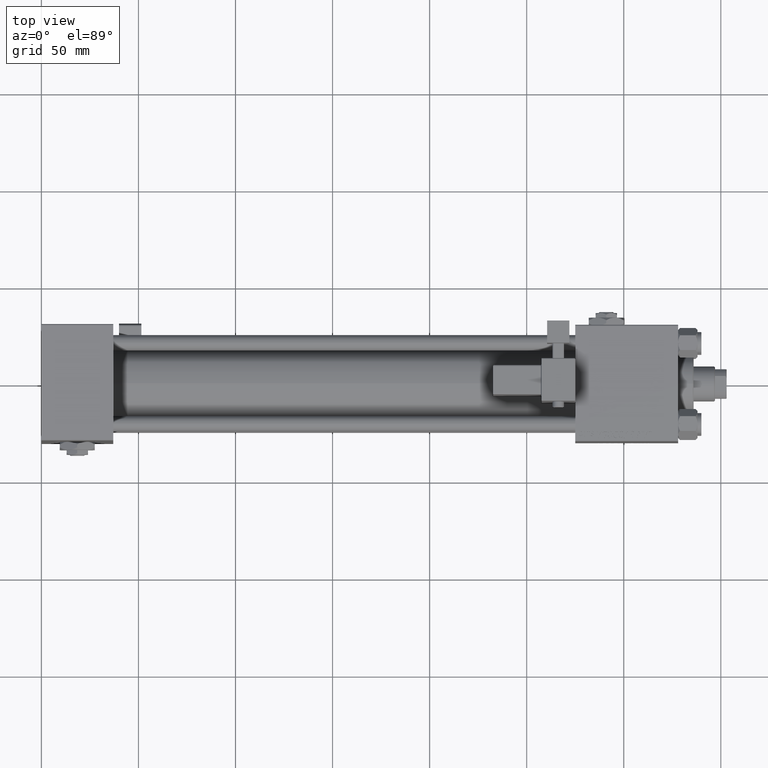
[diagram: clean part render]
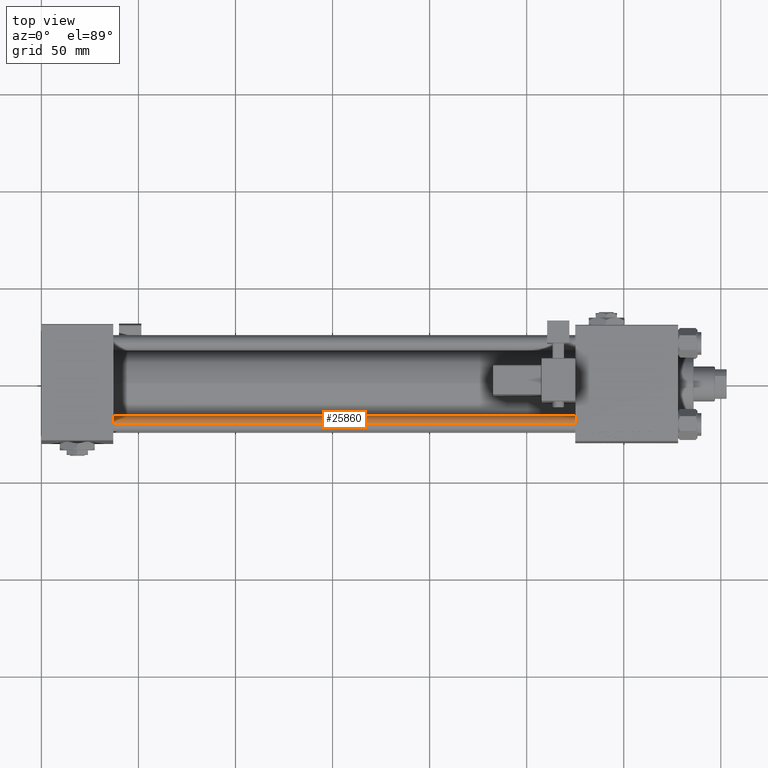
[diagram: same view with one face highlighted and labeled with its STEP entity id]
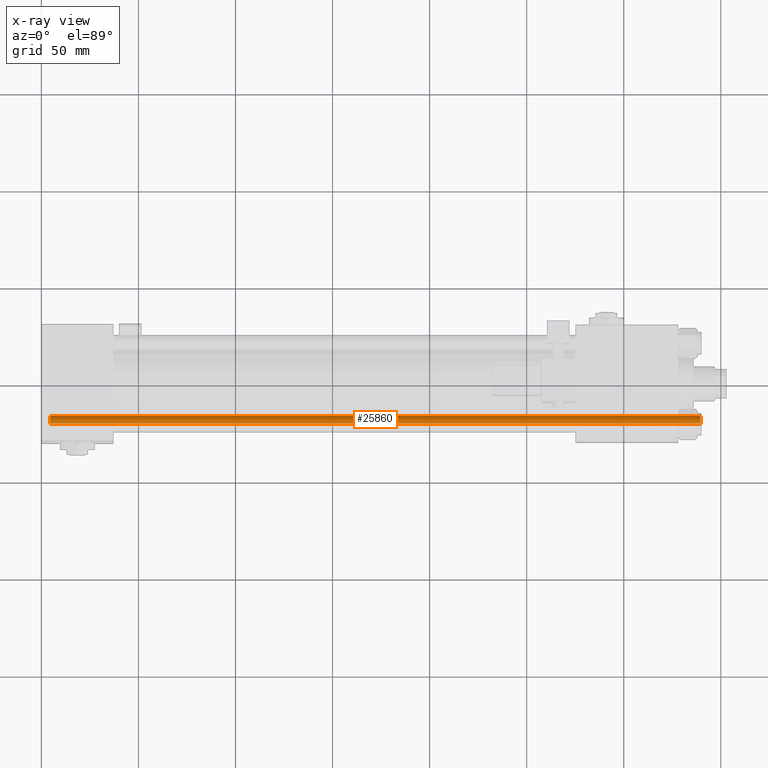
[diagram: x-ray of the same camera — body ghosted, the highlighted face saturated]
A machine part, top view. The second image highlights one B-rep face of the part: STEP entity #25860.
The next image is the same camera in x-ray: the body ghosted, the highlighted face saturated — about 0% of this face is hidden behind the body in this view.
In plain terms, the highlighted cylindrical surface (edge-blend (fillet) strip) has radius 4 mm, axis along (-1, 0, -0).
Its self-contained STEP definition (entity closure, byte-faithful):
#2144 = AXIS2_PLACEMENT_3D ( 'NONE', #6656, #19780, #27973 ) ;
#2477 = DIRECTION ( 'NONE',  ( -1.000000000000000000, 0.000000000000000000, 0.000000000000000000 ) ) ;
#2494 = ORIENTED_EDGE ( 'NONE', *, *, #33054, .F. ) ;
#3423 = VECTOR ( 'NONE', #22147, 1000.000000000000000 ) ;
#6566 = CARTESIAN_POINT ( 'NONE',  ( 0.000000000000000000, 0.000000000000000000, 0.5000000000003335110 ) ) ;
#6656 = CARTESIAN_POINT ( 'NONE',  ( 0.000000000000000000, 0.000000000000000000, 335.5000000000001705 ) ) ;
#9845 = DIRECTION ( 'NONE',  ( 1.000000000000000000, 0.000000000000000000, 0.000000000000000000 ) ) ;
#10874 = CARTESIAN_POINT ( 'NONE',  ( 4.000000000000000000, 4.898587196589411843E-16, 336.0000000000000000 ) ) ;
#12785 = VERTEX_POINT ( 'NONE', #24176 ) ;
#14211 = DIRECTION ( 'NONE',  ( -0.000000000000000000, -0.000000000000000000, 1.000000000000000000 ) ) ;
#14226 = VECTOR ( 'NONE', #42381, 1000.000000000000000 ) ;
#14501 = FACE_OUTER_BOUND ( 'NONE', #38098, .T. ) ;
#14703 = LINE ( 'NONE', #10874, #14226 ) ;
#16218 = VERTEX_POINT ( 'NONE', #45545 ) ;
#18084 = CIRCLE ( 'NONE', #48593, 4.000000000000000000 ) ;
#19780 = DIRECTION ( 'NONE',  ( 0.000000000000000000, 0.000000000000000000, -1.000000000000000000 ) ) ;
#20598 = ORIENTED_EDGE ( 'NONE', *, *, #46457, .T. ) ;
#20655 = ORIENTED_EDGE ( 'NONE', *, *, #25165, .T. ) ;
#21350 = LINE ( 'NONE', #47245, #3423 ) ;
#22147 = DIRECTION ( 'NONE',  ( -0.000000000000000000, -0.000000000000000000, -1.000000000000000000 ) ) ;
#24176 = CARTESIAN_POINT ( 'NONE',  ( -4.000000000000000000, 0.000000000000000000, 335.5000000000001705 ) ) ;
#24261 = VERTEX_POINT ( 'NONE', #35282 ) ;
#25165 = EDGE_CURVE ( 'NONE', #24261, #16218, #18084, .T. ) ;
#25860 = ADVANCED_FACE ( 'NONE', ( #14501 ), #47525, .T. ) ;
#26795 = CARTESIAN_POINT ( 'NONE',  ( 0.000000000000000000, 0.000000000000000000, 336.0000000000000000 ) ) ;
#27732 = AXIS2_PLACEMENT_3D ( 'NONE', #26795, #31175, #2477 ) ;
#27973 = DIRECTION ( 'NONE',  ( 1.000000000000000000, 0.000000000000000000, 0.000000000000000000 ) ) ;
#28840 = CARTESIAN_POINT ( 'NONE',  ( 4.000000000000000000, 4.898587196589411843E-16, 335.5000000000001705 ) ) ;
#30265 = VERTEX_POINT ( 'NONE', #28840 ) ;
#31175 = DIRECTION ( 'NONE',  ( -0.000000000000000000, -0.000000000000000000, -1.000000000000000000 ) ) ;
#33054 = EDGE_CURVE ( 'NONE', #12785, #16218, #21350, .T. ) ;
#35282 = CARTESIAN_POINT ( 'NONE',  ( 4.000000000000000000, 4.898587196589411843E-16, 0.5000000000003335110 ) ) ;
#38098 = EDGE_LOOP ( 'NONE', ( #44256, #20598, #20655, #2494 ) ) ;
#42381 = DIRECTION ( 'NONE',  ( -0.000000000000000000, -0.000000000000000000, -1.000000000000000000 ) ) ;
#44256 = ORIENTED_EDGE ( 'NONE', *, *, #49123, .T. ) ;
#45545 = CARTESIAN_POINT ( 'NONE',  ( -4.000000000000000000, 0.000000000000000000, 0.5000000000003335110 ) ) ;
#46457 = EDGE_CURVE ( 'NONE', #30265, #24261, #14703, .T. ) ;
#47245 = CARTESIAN_POINT ( 'NONE',  ( -4.000000000000000000, 0.000000000000000000, 336.0000000000000000 ) ) ;
#47525 = CYLINDRICAL_SURFACE ( 'NONE', #27732, 4.000000000000000000 ) ;
#48593 = AXIS2_PLACEMENT_3D ( 'NONE', #6566, #14211, #9845 ) ;
#49123 = EDGE_CURVE ( 'NONE', #12785, #30265, #49201, .T. ) ;
#49201 = CIRCLE ( 'NONE', #2144, 4.000000000000000000 ) ;